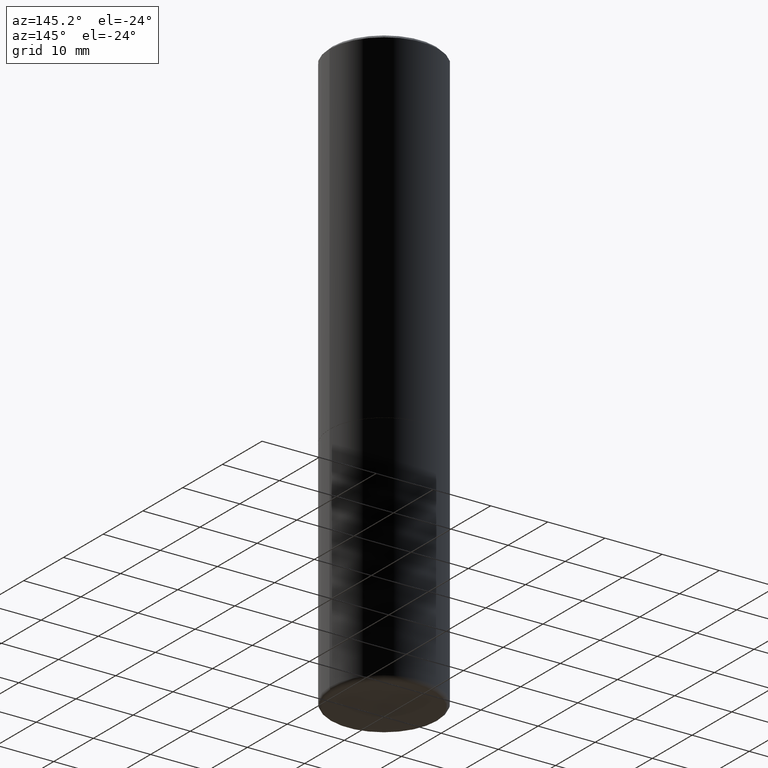
[diagram: clean part render]
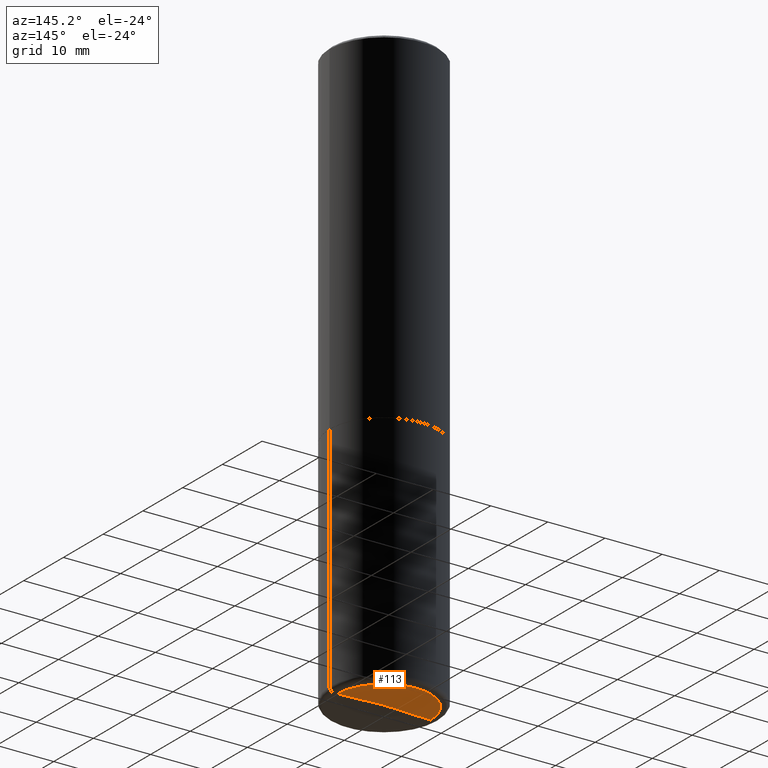
[diagram: same view with one face highlighted and labeled with its STEP entity id]
A machine part, auxiliary view. The second image highlights one B-rep face of the part: STEP entity #113.
In plain terms, the highlighted conical surface has half-angle 88 deg.
Its self-contained STEP definition (entity closure, byte-faithful):
#25 = DIRECTION ( 'NONE',  ( -2.445468806185136597E-29, 3.491481338843145583E-15, 1.000000000000000000 ) ) ;
#31 = CARTESIAN_POINT ( 'NONE',  ( 0.3207382039350491487, -1.616561788857291016E-14, -3.999790555173021733 ) ) ;
#62 = CARTESIAN_POINT ( 'NONE',  ( 0.3207382039350491487, -1.616561788857291016E-14, -3.999790555173021733 ) ) ;
#75 = EDGE_CURVE ( 'NONE', #449, #369, #459, .T. ) ;
#94 = CARTESIAN_POINT ( 'NONE',  ( -0.3207382039350491487, -1.172549117528109573E-14, -3.999790555173021733 ) ) ;
#97 = LINE ( 'NONE', #209, #447 ) ;
#111 = ORIENTED_EDGE ( 'NONE', *, *, #75, .F. ) ;
#113 = ADVANCED_FACE ( 'NONE', ( #467 ), #321, .F. ) ;
#178 = DIRECTION ( 'NONE',  ( -0.9993908270190957621, 6.856857904024558837E-15, -0.03489949670250019204 ) ) ;
#179 = EDGE_LOOP ( 'NONE', ( #111, #444, #251 ) ) ;
#209 = CARTESIAN_POINT ( 'NONE',  ( -0.3207382039350491487, -1.172549117528109573E-14, -3.999790555173021733 ) ) ;
#239 = CARTESIAN_POINT ( 'NONE',  ( 9.781363033949554228E-29, -1.396519408266767050E-14, -3.999790555173021733 ) ) ;
#251 = ORIENTED_EDGE ( 'NONE', *, *, #487, .F. ) ;
#263 = CARTESIAN_POINT ( 'NONE',  ( 9.753972744272833171E-29, -1.392608800818824940E-14, -3.988590130286208790 ) ) ;
#283 = VECTOR ( 'NONE', #341, 39.37007874015748143 ) ;
#315 = AXIS2_PLACEMENT_3D ( 'NONE', #239, #327, #436 ) ;
#321 = CONICAL_SURFACE ( 'NONE', #315, 0.3207382039350491487, 1.535889741755010807 ) ;
#324 = CIRCLE ( 'NONE', #419, 0.3207382039350491487 ) ;
#327 = DIRECTION ( 'NONE',  ( 2.445468806185136597E-29, -3.491481338843145583E-15, -1.000000000000000000 ) ) ;
#341 = DIRECTION ( 'NONE',  ( 0.9993908270190957621, -6.978169709227539121E-15, -0.03489949670250019204 ) ) ;
#343 = DIRECTION ( 'NONE',  ( 1.000000000000000000, -6.982962677686264344E-15, 0.000000000000000000 ) ) ;
#352 = VERTEX_POINT ( 'NONE', #94 ) ;
#369 = VERTEX_POINT ( 'NONE', #62 ) ;
#376 = EDGE_CURVE ( 'NONE', #449, #352, #97, .T. ) ;
#419 = AXIS2_PLACEMENT_3D ( 'NONE', #456, #25, #343 ) ;
#436 = DIRECTION ( 'NONE',  ( -1.000000000000000000, 6.982962677686264344E-15, 0.000000000000000000 ) ) ;
#444 = ORIENTED_EDGE ( 'NONE', *, *, #376, .T. ) ;
#447 = VECTOR ( 'NONE', #178, 39.37007874015748143 ) ;
#449 = VERTEX_POINT ( 'NONE', #263 ) ;
#456 = CARTESIAN_POINT ( 'NONE',  ( 9.781363033949554228E-29, -1.396519408266767050E-14, -3.999790555173021733 ) ) ;
#459 = LINE ( 'NONE', #31, #283 ) ;
#467 = FACE_OUTER_BOUND ( 'NONE', #179, .T. ) ;
#487 = EDGE_CURVE ( 'NONE', #369, #352, #324, .T. ) ;